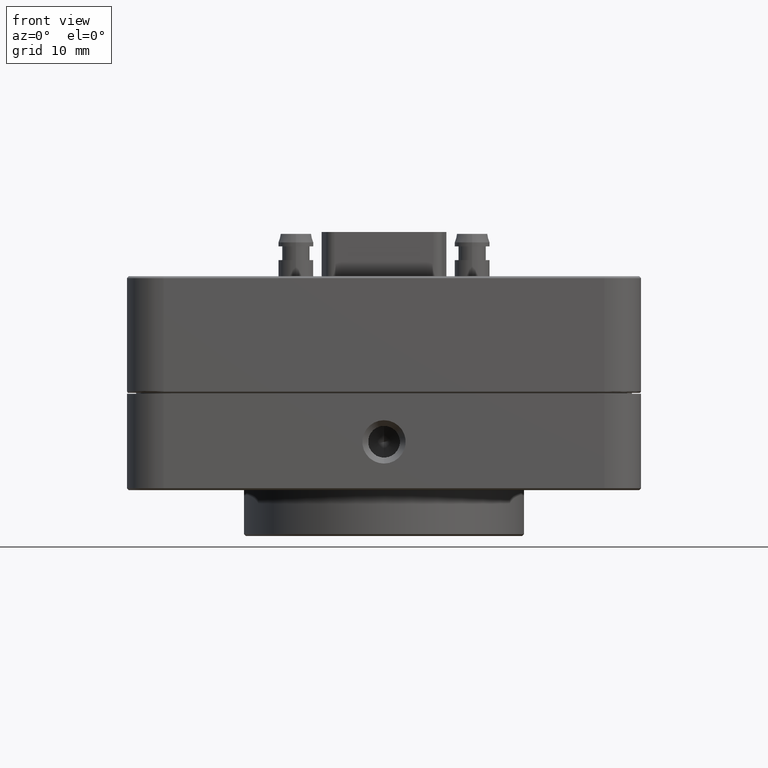
[diagram: clean part render]
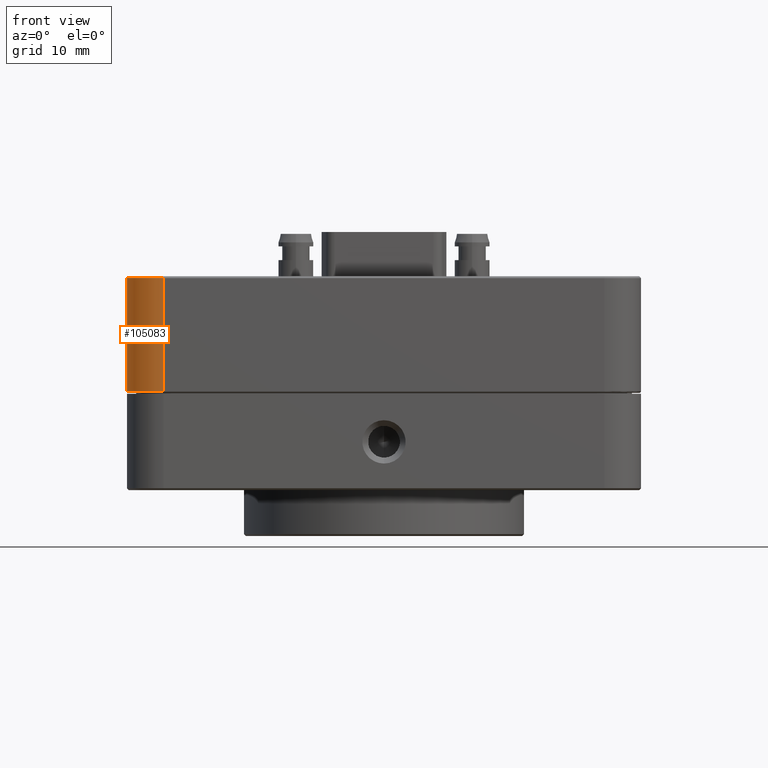
[diagram: same view with one face highlighted and labeled with its STEP entity id]
A machine part, front view. The second image highlights one B-rep face of the part: STEP entity #105083.
In plain terms, the highlighted cylindrical surface (partial cylindrical patch) has radius 4 mm, axis along (0, 0, -1).
Its self-contained STEP definition (entity closure, byte-faithful):
#2070 = CARTESIAN_POINT ( 'NONE',  ( -28.00000004031375400, -19.00000000000000700, 27.29032444000000600 ) ) ;
#3384 = ORIENTED_EDGE ( 'NONE', *, *, #49625, .F. ) ;
#5136 = LINE ( 'NONE', #2070, #92516 ) ;
#5154 = VERTEX_POINT ( 'NONE', #27677 ) ;
#6030 = CYLINDRICAL_SURFACE ( 'NONE', #33065, 4.000000000000000000 ) ;
#10621 = CARTESIAN_POINT ( 'NONE',  ( -24.00000004031375400, -23.00000000000000700, 27.29032444000000600 ) ) ;
#14235 = VERTEX_POINT ( 'NONE', #44709 ) ;
#14949 = DIRECTION ( 'NONE',  ( -0.0000000000000000000, -0.0000000000000000000, 1.000000000000000000 ) ) ;
#15332 = DIRECTION ( 'NONE',  ( 0.0000000000000000000, -0.0000000000000000000, -1.000000000000000000 ) ) ;
#21959 = ORIENTED_EDGE ( 'NONE', *, *, #32643, .T. ) ;
#27677 = CARTESIAN_POINT ( 'NONE',  ( -28.00000004031375400, -19.00000000000001100, 15.79032444000000300 ) ) ;
#32643 = EDGE_CURVE ( 'NONE', #14235, #99307, #62417, .T. ) ;
#33065 = AXIS2_PLACEMENT_3D ( 'NONE', #105462, #15332, #56637 ) ;
#35571 = FACE_OUTER_BOUND ( 'NONE', #85043, .T. ) ;
#42229 = CIRCLE ( 'NONE', #93053, 3.999999999974950700 ) ;
#44280 = DIRECTION ( 'NONE',  ( -0.0000000000000000000, 0.0000000000000000000, -1.000000000000000000 ) ) ;
#44709 = CARTESIAN_POINT ( 'NONE',  ( -24.00000004031375400, -23.00000000000000700, 15.79032444000000300 ) ) ;
#45266 = ORIENTED_EDGE ( 'NONE', *, *, #91314, .T. ) ;
#49625 = EDGE_CURVE ( 'NONE', #14235, #5154, #72428, .T. ) ;
#56637 = DIRECTION ( 'NONE',  ( -1.000000000000000000, 0.0000000000000000000, 0.0000000000000000000 ) ) ;
#56664 = CARTESIAN_POINT ( 'NONE',  ( -28.00000004030749100, -19.00000000000000400, 28.09032444001137900 ) ) ;
#58149 = AXIS2_PLACEMENT_3D ( 'NONE', #93502, #44280, #101762 ) ;
#59530 = DIRECTION ( 'NONE',  ( 0.0000000000000000000, -0.0000000000000000000, -1.000000000000000000 ) ) ;
#62417 = LINE ( 'NONE', #10621, #106115 ) ;
#62721 = ORIENTED_EDGE ( 'NONE', *, *, #95606, .F. ) ;
#64126 = CARTESIAN_POINT ( 'NONE',  ( -24.00000004031375400, -19.00000000000000700, 28.09032444004547800 ) ) ;
#72404 = DIRECTION ( 'NONE',  ( -1.000000000000000000, 0.0000000000000000000, 0.0000000000000000000 ) ) ;
#72428 = CIRCLE ( 'NONE', #58149, 4.000000000000000000 ) ;
#74029 = CARTESIAN_POINT ( 'NONE',  ( -24.00000004031376500, -22.99999999996941500, 28.09032444003695900 ) ) ;
#84512 = VERTEX_POINT ( 'NONE', #56664 ) ;
#85043 = EDGE_LOOP ( 'NONE', ( #45266, #3384, #21959, #62721 ) ) ;
#91314 = EDGE_CURVE ( 'NONE', #84512, #5154, #5136, .T. ) ;
#91805 = DIRECTION ( 'NONE',  ( -0.0000000000000000000, 0.0000000000000000000, 1.000000000000000000 ) ) ;
#92516 = VECTOR ( 'NONE', #59530, 1000.000000000000000 ) ;
#93053 = AXIS2_PLACEMENT_3D ( 'NONE', #64126, #14949, #72404 ) ;
#93502 = CARTESIAN_POINT ( 'NONE',  ( -24.00000004031375400, -19.00000000000000700, 15.79032444000000300 ) ) ;
#95606 = EDGE_CURVE ( 'NONE', #84512, #99307, #42229, .T. ) ;
#99307 = VERTEX_POINT ( 'NONE', #74029 ) ;
#101762 = DIRECTION ( 'NONE',  ( 1.000000000000000000, 0.0000000000000000000, 0.0000000000000000000 ) ) ;
#105083 = ADVANCED_FACE ( 'NONE', ( #35571 ), #6030, .T. ) ;
#105462 = CARTESIAN_POINT ( 'NONE',  ( -24.00000004031375400, -19.00000000000000700, 27.29032444000000600 ) ) ;
#106115 = VECTOR ( 'NONE', #91805, 1000.000000000000000 ) ;